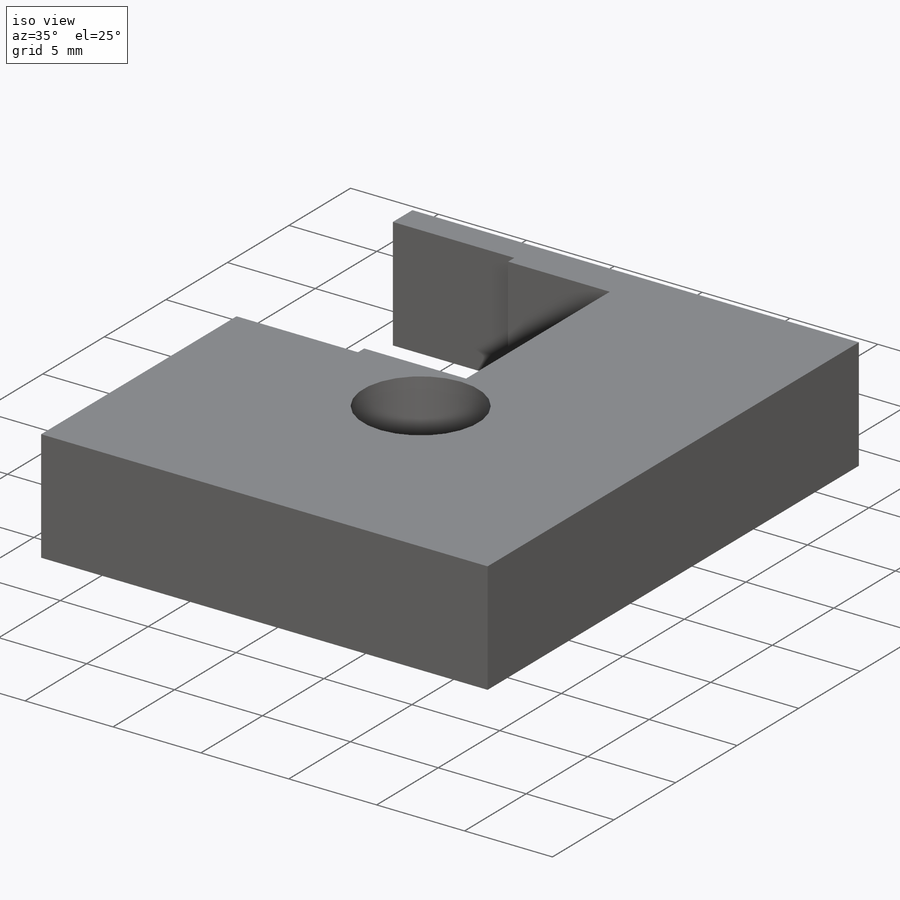
[diagram: iso view]
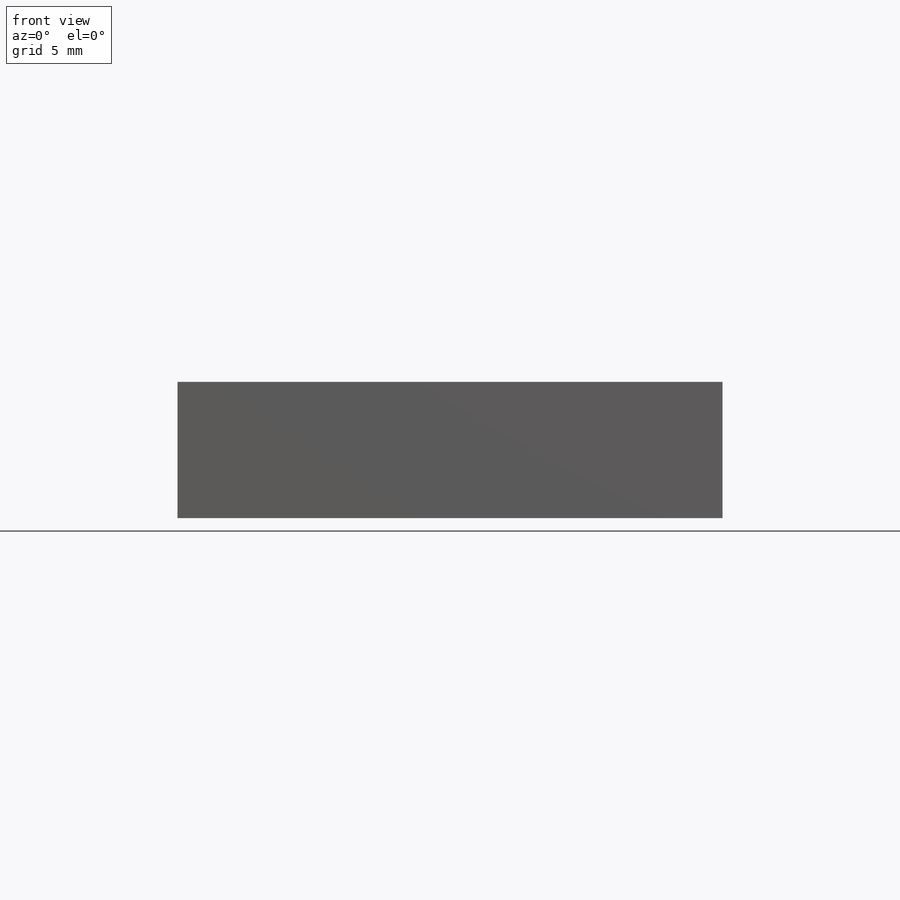
[diagram: front view]
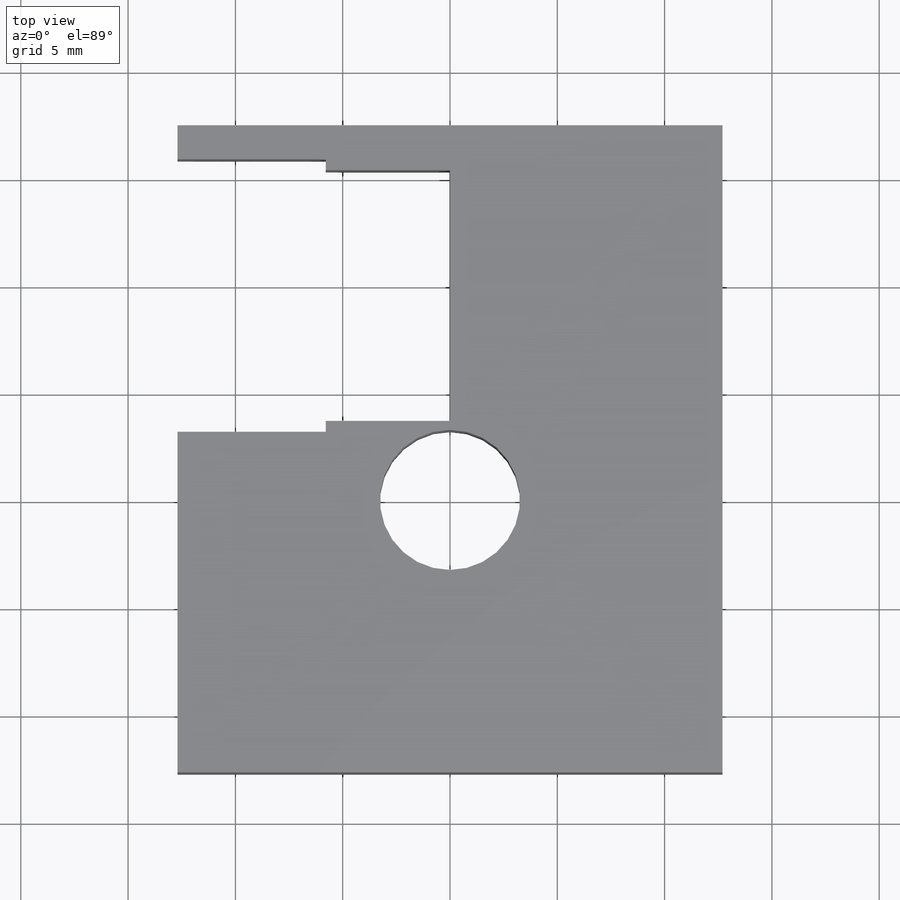
[diagram: top view]
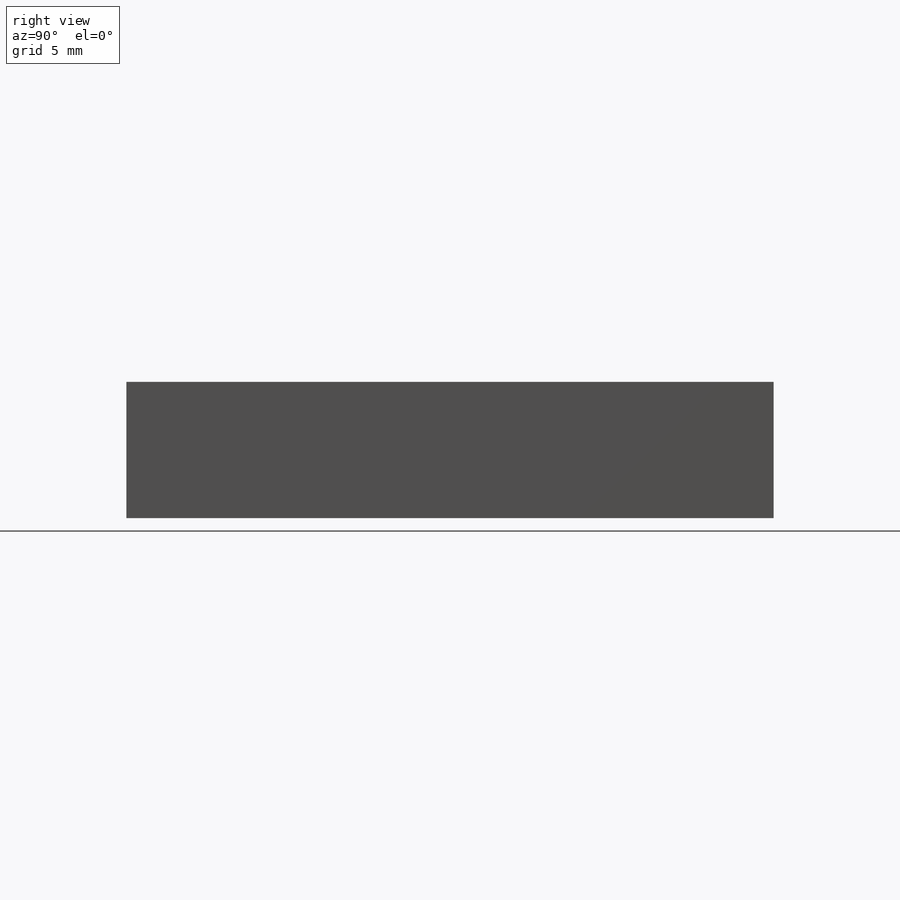
[diagram: right view]
SOLIDWORKS PART (.sldprt)
format: sldprt  version: not decoded by parser v0  size: 176,128 bytes
history: native  units: mm
features: sketch x4, material x1, extrude x1, hole x1 (+12 scaffold rows collapsed)
feature tree (19):
  scaffold x12  (default folders/planes/origin — collapsed)
  material  "Material <not specified>"
  sketch  "Sketch1"  dims[D1=6.35mm D2=25.4mm D3=25.4mm D4=12.7mm D5=6.9088mm D6=10.4775mm D7=10.9728mm]
  sketch  "Sketch2"  dims[D4=6.35mm D1=0.508mm D2=0.508mm D3=17.4625mm]
  extrude  "Boss-Extrude1"  Depth=6.35mm
  hole  "1/4 Clearance Hole1"  Diameter=6.5278mm Depth=6.35mm
  sketch  "Sketch4"
  sketch  "Sketch3"  dims[hole-wizard template sketch: 47 standard entries collapsed; hole parameters kept: c15.Hole Depth=6.35mm c15.D3=~14.816244mm c15.Drill Angle=118.0deg]
decode coverage: 5 of 6 modeling features carry decoded parameters
note: ~ marks probable driven/reference dimensions
note: suppression state not decoded; provenance and decode notes live in map.json
